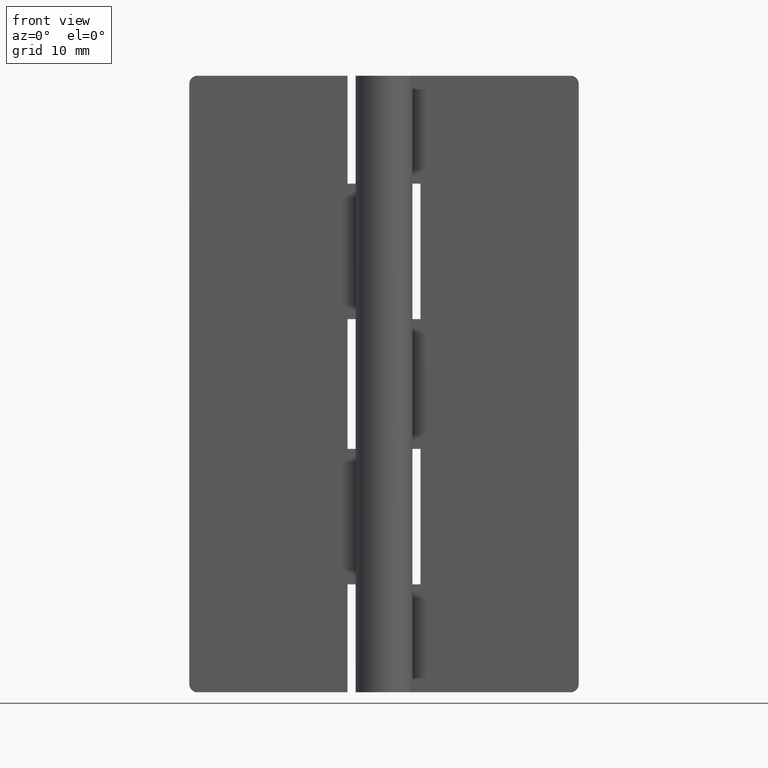
[diagram: clean part render]
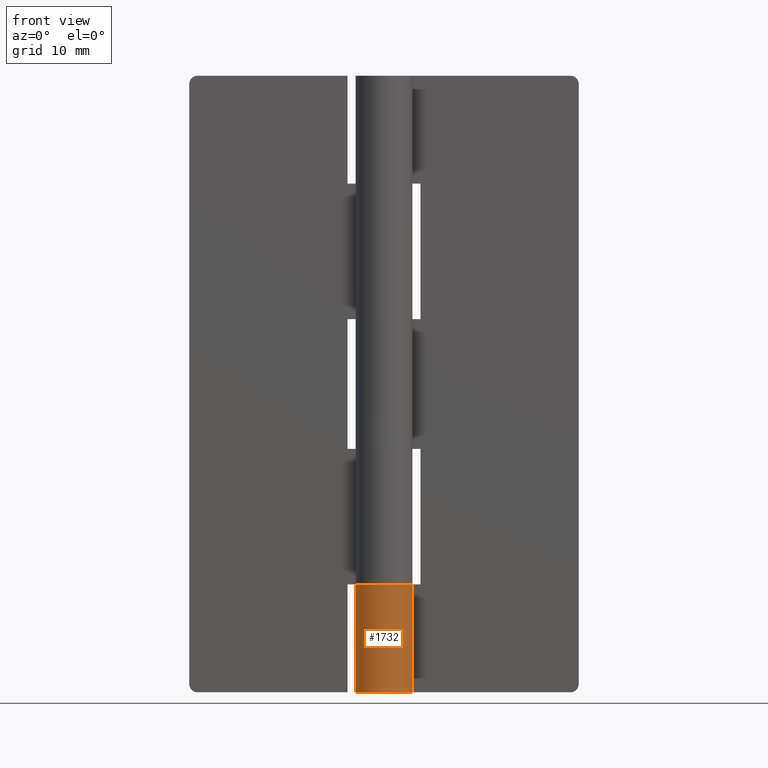
[diagram: same view with one face highlighted and labeled with its STEP entity id]
A machine part, front view. The second image highlights one B-rep face of the part: STEP entity #1732.
In plain terms, the highlighted face is a freeform B-spline surface patch.
Its self-contained STEP definition (entity closure, byte-faithful):
#1104=CARTESIAN_POINT('',(0.0,3.500000000000000,13.299987000000000));
#1105=VERTEX_POINT('',#1104);
#1106=CARTESIAN_POINT('',(2.906458325866725,1.950000000000000,13.299987000000000));
#1107=VERTEX_POINT('',#1106);
#1108=CARTESIAN_POINT('',(0.0,3.500000000000000,13.299987000000000));
#1109=CARTESIAN_POINT('',(-2.732759340469793,3.500000000000000,13.299987000000003));
#1110=CARTESIAN_POINT('',(-3.395511382448716,0.848824158269077,13.299987000000000));
#1111=CARTESIAN_POINT('',(-4.058263424427640,-1.802351683461844,13.299987000000003));
#1112=CARTESIAN_POINT('',(-1.646966909200060,-3.088284313336452,13.299987000000000));
#1113=CARTESIAN_POINT('',(0.764329606027519,-4.374216943211060,13.299987000000003));
#1114=CARTESIAN_POINT('',(2.596662639363706,-2.346772919848172,13.299987000000000));
#1115=CARTESIAN_POINT('',(4.428995672699895,-0.319328896485282,13.299987000000003));
#1116=CARTESIAN_POINT('',(2.906458325866723,1.950000000000001,13.299987000000000));
#1124=(BOUNDED_CURVE()B_SPLINE_CURVE(2,(#1108,#1109,#1110,#1111,#1112,#1113,#1114,#1115,#1116),.UNSPECIFIED.,.F.,.U.)B_SPLINE_CURVE_WITH_KNOTS((3,2,2,2,3),(0.0,0.250000000000000,0.500000000000000,0.750000000000000,1.0),.UNSPECIFIED.)CURVE()GEOMETRIC_REPRESENTATION_ITEM()RATIONAL_B_SPLINE_CURVE((1.0,0.788200858942972,1.0,0.788200858942972,1.0,0.788200858942972,1.0,0.788200858942972,1.0))REPRESENTATION_ITEM(''));
#1125=EDGE_CURVE('',#1105,#1107,#1124,.T.);
#1350=CARTESIAN_POINT('',(0.0,3.500000000000000,0.0));
#1351=VERTEX_POINT('',#1350);
#1386=CARTESIAN_POINT('',(2.906458325866725,1.950000000000000,0.0));
#1387=VERTEX_POINT('',#1386);
#1393=CARTESIAN_POINT('',(2.906458325866724,1.950000000000000,0.0));
#1394=CARTESIAN_POINT('',(4.428995672699894,-0.319328896485281,0.0));
#1395=CARTESIAN_POINT('',(2.596662639363708,-2.346772919848170,0.0));
#1396=CARTESIAN_POINT('',(0.764329606027520,-4.374216943211062,0.0));
#1397=CARTESIAN_POINT('',(-1.646966909200061,-3.088284313336452,0.0));
#1398=CARTESIAN_POINT('',(-4.058263424427635,-1.802351683461845,0.0));
#1399=CARTESIAN_POINT('',(-3.395511382448717,0.848824158269075,0.0));
#1400=CARTESIAN_POINT('',(-2.732759340469795,3.500000000000000,0.0));
#1401=CARTESIAN_POINT('',(0.0,3.500000000000000,0.0));
#1409=(BOUNDED_CURVE()B_SPLINE_CURVE(2,(#1393,#1394,#1395,#1396,#1397,#1398,#1399,#1400,#1401),.UNSPECIFIED.,.F.,.U.)B_SPLINE_CURVE_WITH_KNOTS((3,2,2,2,3),(0.0,0.250000000000000,0.500000000000000,0.750000000000000,1.0),.UNSPECIFIED.)CURVE()GEOMETRIC_REPRESENTATION_ITEM()RATIONAL_B_SPLINE_CURVE((1.0,0.788200858942973,1.0,0.788200858942973,1.0,0.788200858942973,1.0,0.788200858942973,1.0))REPRESENTATION_ITEM(''));
#1410=EDGE_CURVE('',#1387,#1351,#1409,.T.);
#1598=CARTESIAN_POINT('',(0.0,3.500000000000000,13.299987000000000));
#1599=CARTESIAN_POINT('',(0.0,3.500000000000000,0.0));
#1600=QUASI_UNIFORM_CURVE('',1,(#1598,#1599),.UNSPECIFIED.,.F.,.U.);
#1601=EDGE_CURVE('',#1105,#1351,#1600,.T.);
#1700=CARTESIAN_POINT('',(0.100263679686654,3.498563590180359,13.632486675000001));
#1701=CARTESIAN_POINT('',(0.100263679686654,3.498563590180359,-0.340812166874999));
#1702=CARTESIAN_POINT('',(-4.324391348104696,3.625367686488793,13.632486675000003));
#1703=CARTESIAN_POINT('',(-4.324391348104696,3.625367686488793,-0.340812166874999));
#1704=CARTESIAN_POINT('',(-3.427381751617110,-0.709263229472684,13.632486675000001));
#1705=CARTESIAN_POINT('',(-3.427381751617110,-0.709263229472684,-0.340812166874999));
#1706=CARTESIAN_POINT('',(-2.530372155129526,-5.043894145434162,13.632486675000003));
#1707=CARTESIAN_POINT('',(-2.530372155129526,-5.043894145434162,-0.340812166874999));
#1708=CARTESIAN_POINT('',(1.480553574345205,-3.171428875679482,13.632486675000001));
#1709=CARTESIAN_POINT('',(1.480553574345205,-3.171428875679482,-0.340812166874999));
#1710=CARTESIAN_POINT('',(5.491479303819935,-1.298963605924803,13.632486675000003));
#1711=CARTESIAN_POINT('',(5.491479303819935,-1.298963605924803,-0.340812166874999));
#1712=CARTESIAN_POINT('',(2.744503448160206,2.172026892797768,13.632486675000001));
#1713=CARTESIAN_POINT('',(2.744503448160206,2.172026892797768,-0.340812166874999));
#1721=(BOUNDED_SURFACE()B_SPLINE_SURFACE(1,2,((#1700,#1702,#1704,#1706,#1708,#1710,#1712),(#1701,#1703,#1705,#1707,#1709,#1711,#1713)),.UNSPECIFIED.,.F.,.F.,.U.)B_SPLINE_SURFACE_WITH_KNOTS((2,2),(3,2,2,3),(0.0,13.973298841875000),(0.0,6.777915536387798,13.555831072775600,20.333746609163398),.UNSPECIFIED.)GEOMETRIC_REPRESENTATION_ITEM()RATIONAL_B_SPLINE_SURFACE(((1.0,0.620235491268260,1.0,0.620235491268260,1.0,0.620235491268260,1.0),(1.0,0.620235491268260,1.0,0.620235491268260,1.0,0.620235491268260,1.0)))REPRESENTATION_ITEM('')SURFACE());
#1722=CARTESIAN_POINT('',(2.906458325866725,1.950000000000000,13.299987000000000));
#1723=CARTESIAN_POINT('',(2.906458325866725,1.950000000000000,0.0));
#1724=QUASI_UNIFORM_CURVE('',1,(#1722,#1723),.UNSPECIFIED.,.F.,.U.);
#1725=EDGE_CURVE('',#1107,#1387,#1724,.T.);
#1726=ORIENTED_EDGE('',*,*,#1725,.F.);
#1727=ORIENTED_EDGE('',*,*,#1125,.F.);
#1728=ORIENTED_EDGE('',*,*,#1601,.T.);
#1729=ORIENTED_EDGE('',*,*,#1410,.F.);
#1730=EDGE_LOOP('',(#1726,#1727,#1728,#1729));
#1731=FACE_OUTER_BOUND('',#1730,.T.);
#1732=ADVANCED_FACE('',(#1731),#1721,.T.);